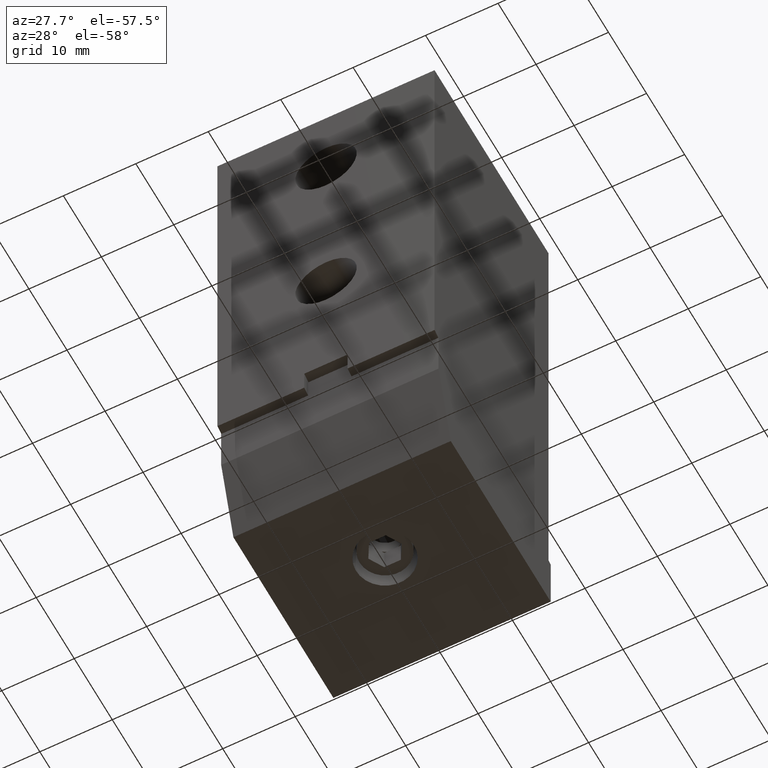
[diagram: clean part render]
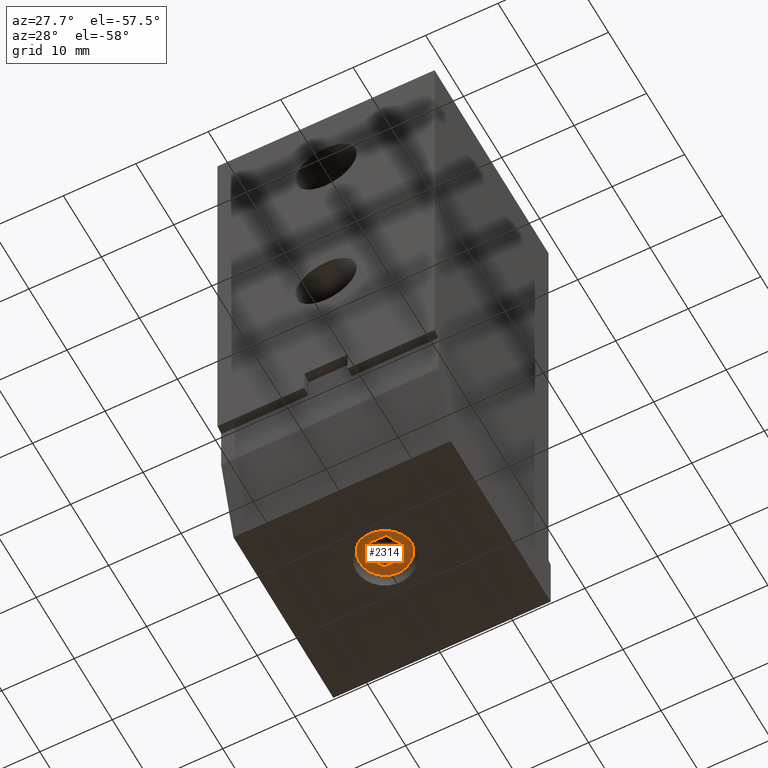
[diagram: same view with one face highlighted and labeled with its STEP entity id]
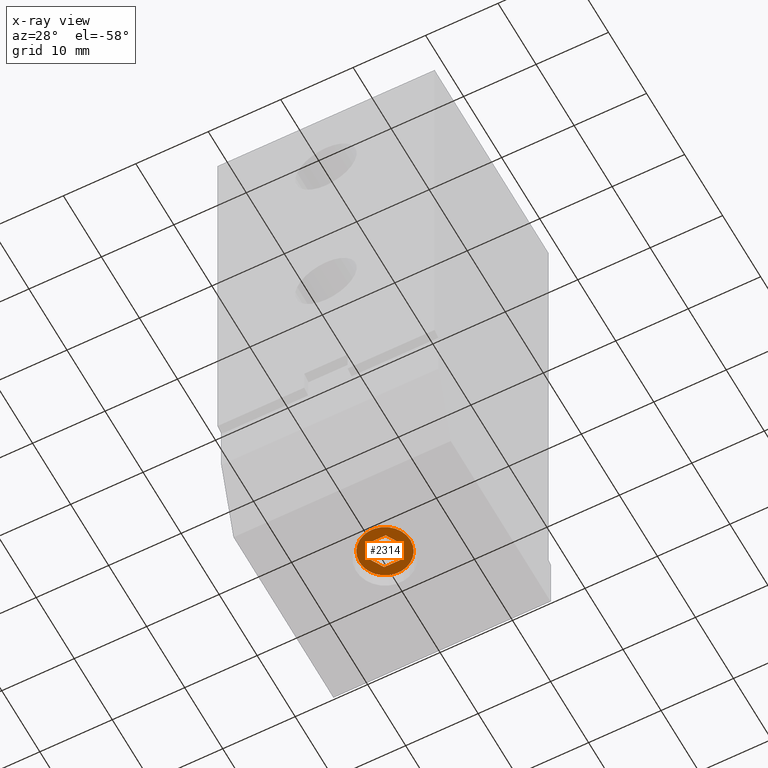
[diagram: x-ray of the same camera — body ghosted, the highlighted face saturated]
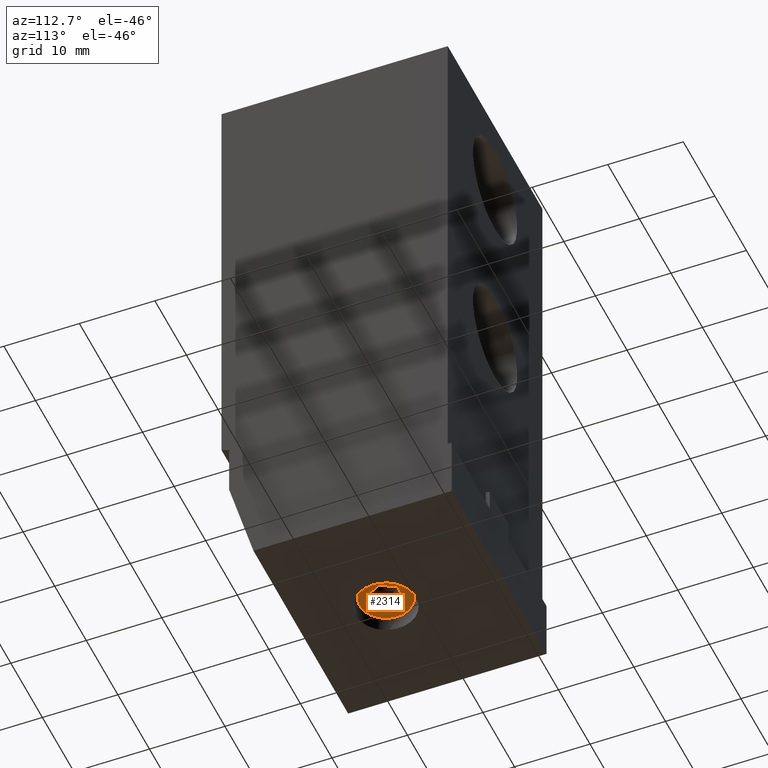
[diagram: same view with one face highlighted and labeled with its STEP entity id]
A machine part, auxiliary view. The second image highlights one B-rep face of the part: STEP entity #2314.
The next image is the same camera in x-ray: the body ghosted, the highlighted face saturated — about 0% of this face is hidden behind the body in this view.
A second angle (auxiliary view) of the same face is appended — the face is thin or edge-on in the first view.
In plain terms, the highlighted planar face has unit normal (0, 0, 1).
Its self-contained STEP definition (entity closure, byte-faithful):
#795=DIRECTION('',(-5.E-1,-8.660254037844E-1,0.E0));
#796=VECTOR('',#795,9.064399226278E-2);
#797=CARTESIAN_POINT('',(-4.532199613138E-2,6.893661417323E-1,
-3.028897637795E0));
#798=LINE('',#797,#796);
#823=DIRECTION('',(5.E-1,-8.660254037844E-1,0.E0));
#824=VECTOR('',#823,9.064399226277E-2);
#825=CARTESIAN_POINT('',(-9.064399226277E-2,6.108661417323E-1,
-3.028897637795E0));
#826=LINE('',#825,#824);
#851=DIRECTION('',(1.E0,0.E0,0.E0));
#852=VECTOR('',#851,9.064399226278E-2);
#853=CARTESIAN_POINT('',(-4.532199613139E-2,5.323661417323E-1,
-3.028897637795E0));
#854=LINE('',#853,#852);
#879=DIRECTION('',(5.E-1,8.660254037844E-1,0.E0));
#880=VECTOR('',#879,9.064399226278E-2);
#881=CARTESIAN_POINT('',(4.532199613138E-2,5.323661417323E-1,
-3.028897637795E0));
#882=LINE('',#881,#880);
#907=DIRECTION('',(-5.E-1,8.660254037844E-1,0.E0));
#908=VECTOR('',#907,9.064399226277E-2);
#909=CARTESIAN_POINT('',(9.064399226277E-2,6.108661417323E-1,
-3.028897637795E0));
#910=LINE('',#909,#908);
#935=DIRECTION('',(-1.E0,0.E0,0.E0));
#936=VECTOR('',#935,9.064399226278E-2);
#937=CARTESIAN_POINT('',(4.532199613139E-2,6.893661417323E-1,
-3.028897637795E0));
#938=LINE('',#937,#936);
#970=CARTESIAN_POINT('',(0.E0,6.108661417323E-1,-3.028897637795E0));
#971=DIRECTION('',(0.E0,0.E0,-1.E0));
#972=DIRECTION('',(1.E0,0.E0,0.E0));
#973=AXIS2_PLACEMENT_3D('',#970,#971,#972);
#1265=CARTESIAN_POINT('',(0.E0,6.108661417323E-1,-3.028897637795E0));
#1266=DIRECTION('',(0.E0,0.E0,-1.E0));
#1267=DIRECTION('',(-1.E0,0.E0,0.E0));
#1268=AXIS2_PLACEMENT_3D('',#1265,#1266,#1267);
#1455=CARTESIAN_POINT('',(1.38E-1,6.108661417323E-1,-3.028897637795E0));
#1456=VERTEX_POINT('',#1455);
#1457=CARTESIAN_POINT('',(-1.38E-1,6.108661417323E-1,-3.028897637795E0));
#1458=VERTEX_POINT('',#1457);
#1459=CARTESIAN_POINT('',(-4.532199613139E-2,5.323661417323E-1,
-3.028897637795E0));
#1460=CARTESIAN_POINT('',(4.532199613138E-2,5.323661417323E-1,
-3.028897637795E0));
#1461=VERTEX_POINT('',#1459);
#1462=VERTEX_POINT('',#1460);
#1463=CARTESIAN_POINT('',(-9.064399226277E-2,6.108661417323E-1,
-3.028897637795E0));
#1464=VERTEX_POINT('',#1463);
#1465=CARTESIAN_POINT('',(-4.532199613138E-2,6.893661417323E-1,
-3.028897637795E0));
#1466=VERTEX_POINT('',#1465);
#1467=CARTESIAN_POINT('',(4.532199613139E-2,6.893661417323E-1,
-3.028897637795E0));
#1468=VERTEX_POINT('',#1467);
#1469=CARTESIAN_POINT('',(9.064399226277E-2,6.108661417323E-1,
-3.028897637795E0));
#1470=VERTEX_POINT('',#1469);
#2295=CARTESIAN_POINT('',(-5.905511811024E-1,4.E-2,-3.028897637795E0));
#2296=DIRECTION('',(0.E0,0.E0,1.E0));
#2297=DIRECTION('',(-1.E0,0.E0,0.E0));
#2298=AXIS2_PLACEMENT_3D('',#2295,#2296,#2297);
#2299=PLANE('',#2298);
#2301=ORIENTED_EDGE('',*,*,#2300,.F.);
#2303=ORIENTED_EDGE('',*,*,#2302,.F.);
#2304=EDGE_LOOP('',(#2301,#2303));
#2305=FACE_OUTER_BOUND('',#2304,.F.);
#2306=ORIENTED_EDGE('',*,*,#2175,.F.);
#2307=ORIENTED_EDGE('',*,*,#2144,.F.);
#2308=ORIENTED_EDGE('',*,*,#2112,.F.);
#2309=ORIENTED_EDGE('',*,*,#2268,.F.);
#2310=ORIENTED_EDGE('',*,*,#2238,.F.);
#2311=ORIENTED_EDGE('',*,*,#2206,.F.);
#2312=EDGE_LOOP('',(#2306,#2307,#2308,#2309,#2310,#2311));
#2313=FACE_BOUND('',#2312,.F.);
#2314=ADVANCED_FACE('',(#2305,#2313),#2299,.F.);
#974=CIRCLE('',#973,1.38E-1);
#1269=CIRCLE('',#1268,1.38E-1);
#2112=EDGE_CURVE('',#1466,#1464,#798,.T.);
#2144=EDGE_CURVE('',#1464,#1461,#826,.T.);
#2175=EDGE_CURVE('',#1461,#1462,#854,.T.);
#2206=EDGE_CURVE('',#1462,#1470,#882,.T.);
#2238=EDGE_CURVE('',#1470,#1468,#910,.T.);
#2268=EDGE_CURVE('',#1468,#1466,#938,.T.);
#2300=EDGE_CURVE('',#1456,#1458,#974,.T.);
#2302=EDGE_CURVE('',#1458,#1456,#1269,.T.);